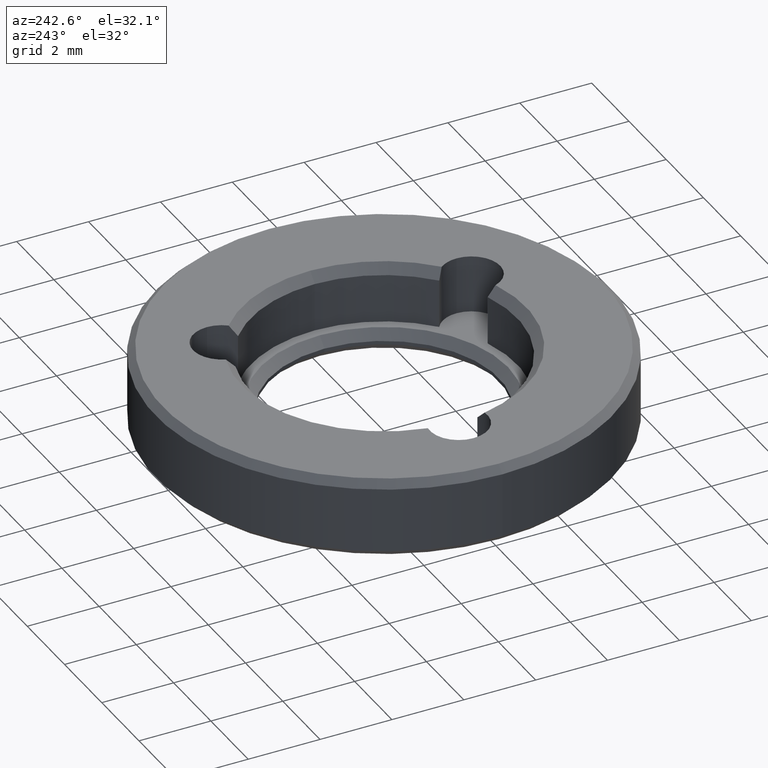
[diagram: clean part render]
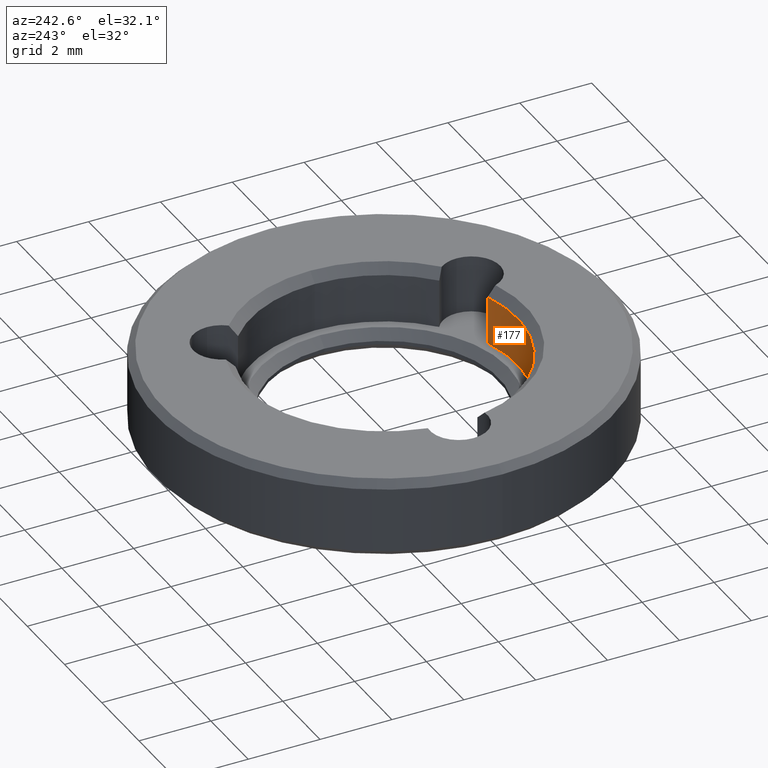
[diagram: same view with one face highlighted and labeled with its STEP entity id]
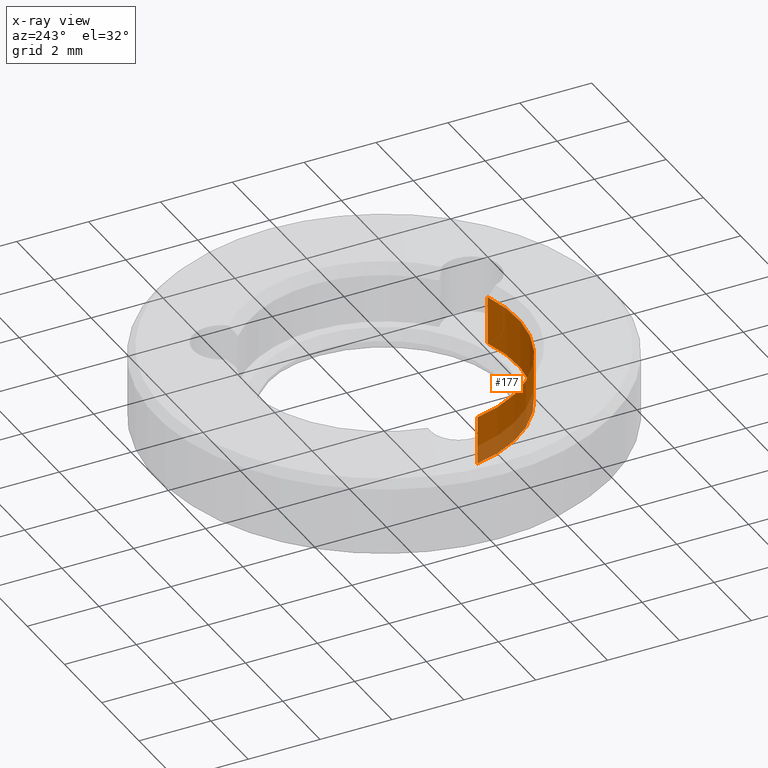
[diagram: x-ray of the same camera — body ghosted, the highlighted face saturated]
A machine part, auxiliary view. The second image highlights one B-rep face of the part: STEP entity #177.
The next image is the same camera in x-ray: the body ghosted, the highlighted face saturated — about 22% of this face is hidden behind the body in this view.
In plain terms, the highlighted cylindrical surface (partial cylindrical patch) has radius 3.71 mm, axis along (-0, -0, 1).
Its self-contained STEP definition (entity closure, byte-faithful):
#21 = LINE ( 'NONE', #783, #628 ) ;
#38 = DIRECTION ( 'NONE',  ( -0.000000000000000000, -0.000000000000000000, 1.000000000000000000 ) ) ;
#47 = VERTEX_POINT ( 'NONE', #906 ) ;
#86 = CARTESIAN_POINT ( 'NONE',  ( -3.641421446384038862, -0.7100351046352345596, 0.6000000000000003109 ) ) ;
#108 = CARTESIAN_POINT ( 'NONE',  ( 1.205802284999181850, -3.508581030771663833, 0.6000000000000003109 ) ) ;
#121 = EDGE_CURVE ( 'NONE', #845, #683, #680, .T. ) ;
#177 = ADVANCED_FACE ( 'NONE', ( #853 ), #728, .F. ) ;
#213 = EDGE_CURVE ( 'NONE', #845, #673, #21, .T. ) ;
#263 = ORIENTED_EDGE ( 'NONE', *, *, #398, .T. ) ;
#329 = CIRCLE ( 'NONE', #466, 3.709999999999999964 ) ;
#360 = DIRECTION ( 'NONE',  ( 1.000000000000000000, 0.000000000000000000, 0.000000000000000000 ) ) ;
#398 = EDGE_CURVE ( 'NONE', #673, #47, #329, .T. ) ;
#418 = AXIS2_PLACEMENT_3D ( 'NONE', #557, #698, #360 ) ;
#438 = LINE ( 'NONE', #661, #854 ) ;
#447 = DIRECTION ( 'NONE',  ( -0.000000000000000000, 0.000000000000000000, -1.000000000000000000 ) ) ;
#464 = EDGE_LOOP ( 'NONE', ( #263, #870, #755, #907 ) ) ;
#466 = AXIS2_PLACEMENT_3D ( 'NONE', #612, #552, #764 ) ;
#515 = AXIS2_PLACEMENT_3D ( 'NONE', #658, #788, #874 ) ;
#552 = DIRECTION ( 'NONE',  ( 0.000000000000000000, 0.000000000000000000, 1.000000000000000000 ) ) ;
#557 = CARTESIAN_POINT ( 'NONE',  ( 0.000000000000000000, 0.000000000000000000, 0.6000000000000000888 ) ) ;
#612 = CARTESIAN_POINT ( 'NONE',  ( 0.000000000000000000, 0.000000000000000000, 1.949999999999998179 ) ) ;
#628 = VECTOR ( 'NONE', #38, 1000.000000000000000 ) ;
#657 = CARTESIAN_POINT ( 'NONE',  ( -3.641421446384039307, -0.7100351046352348927, 1.949999999999998179 ) ) ;
#658 = CARTESIAN_POINT ( 'NONE',  ( 0.000000000000000000, 0.000000000000000000, 0.6000000000000000888 ) ) ;
#661 = CARTESIAN_POINT ( 'NONE',  ( 1.205802284999182072, -3.508581030771663833, 1.400000000000000133 ) ) ;
#673 = VERTEX_POINT ( 'NONE', #657 ) ;
#674 = EDGE_CURVE ( 'NONE', #47, #683, #438, .T. ) ;
#680 = CIRCLE ( 'NONE', #418, 3.709999999999999964 ) ;
#683 = VERTEX_POINT ( 'NONE', #108 ) ;
#698 = DIRECTION ( 'NONE',  ( 0.000000000000000000, 0.000000000000000000, 1.000000000000000000 ) ) ;
#728 = CYLINDRICAL_SURFACE ( 'NONE', #515, 3.709999999999999964 ) ;
#755 = ORIENTED_EDGE ( 'NONE', *, *, #121, .F. ) ;
#764 = DIRECTION ( 'NONE',  ( 1.000000000000000000, 0.000000000000000000, 0.000000000000000000 ) ) ;
#783 = CARTESIAN_POINT ( 'NONE',  ( -3.641421446384038862, -0.7100351046352344486, 1.400000000000000133 ) ) ;
#788 = DIRECTION ( 'NONE',  ( -0.000000000000000000, -0.000000000000000000, 1.000000000000000000 ) ) ;
#845 = VERTEX_POINT ( 'NONE', #86 ) ;
#853 = FACE_OUTER_BOUND ( 'NONE', #464, .T. ) ;
#854 = VECTOR ( 'NONE', #447, 1000.000000000000000 ) ;
#870 = ORIENTED_EDGE ( 'NONE', *, *, #674, .T. ) ;
#874 = DIRECTION ( 'NONE',  ( 1.000000000000000000, 0.000000000000000000, 0.000000000000000000 ) ) ;
#906 = CARTESIAN_POINT ( 'NONE',  ( 1.205802284999181850, -3.508581030771663833, 1.949999999999998179 ) ) ;
#907 = ORIENTED_EDGE ( 'NONE', *, *, #213, .T. ) ;